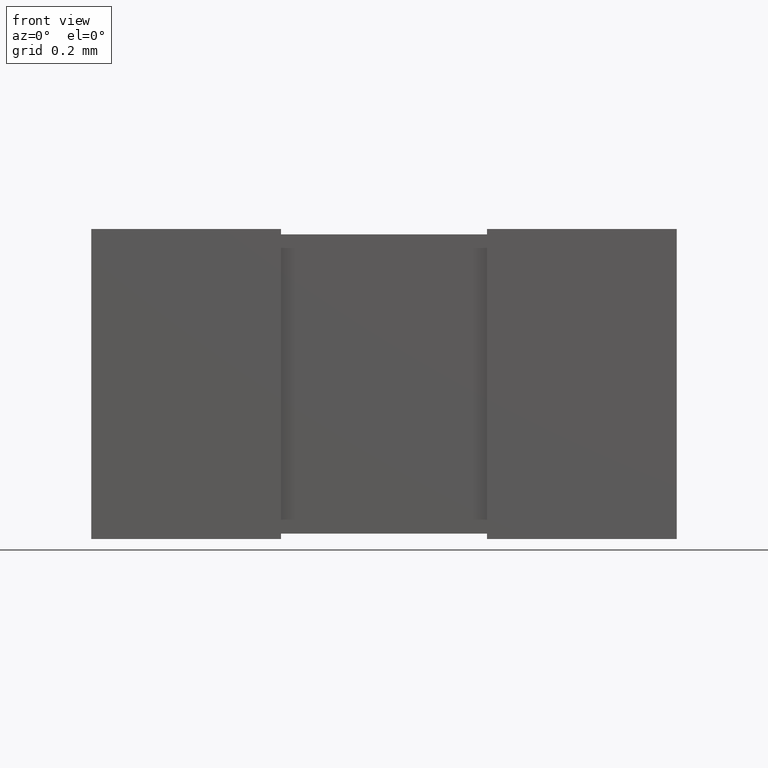
[diagram: clean part render]
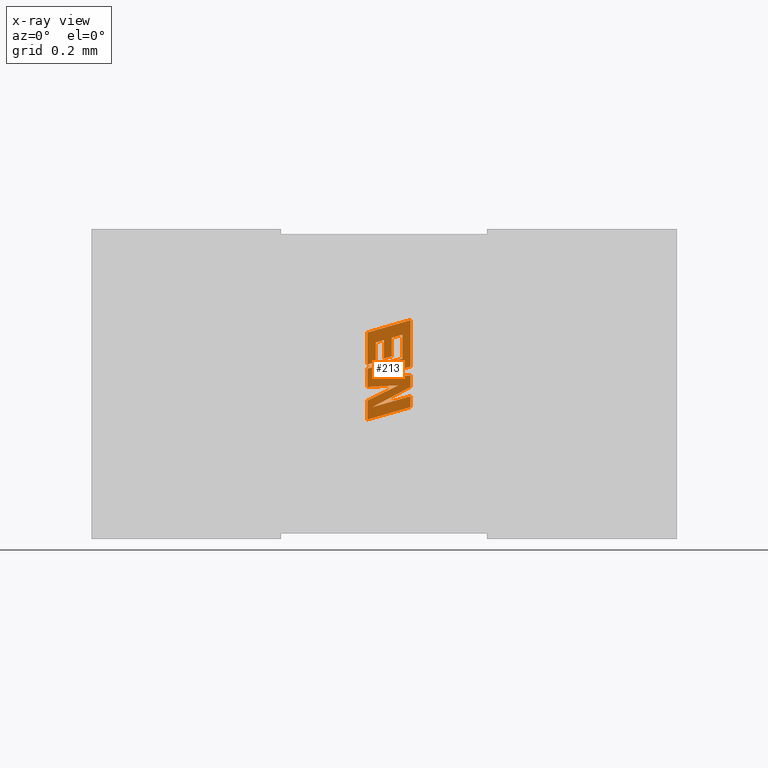
[diagram: x-ray — body ghosted, one internal face saturated and labeled with its STEP entity id]
A machine part, front view, then the same camera in x-ray: the body is ghosted and one INTERNAL B-rep face — a face not visible from any outside direction — is saturated and labeled: STEP entity #213.
In plain terms, the highlighted planar face has unit normal (0, -1, 0).
Its self-contained STEP definition (entity closure, byte-faithful):
#6 = LINE ( 'NONE', #500, #578 ) ;
#37 = EDGE_CURVE ( 'NONE', #2190, #2473, #2180, .T. ) ;
#52 = CARTESIAN_POINT ( 'NONE',  ( 0.8159407111180353400, 0.8844830999999998600, -0.4314949336900854000 ) ) ;
#80 = ORIENTED_EDGE ( 'NONE', *, *, #605, .F. ) ;
#97 = EDGE_CURVE ( 'NONE', #1638, #477, #1908, .T. ) ;
#98 = DIRECTION ( 'NONE',  ( 0.0000000000000000000, 0.0000000000000000000, -1.000000000000000000 ) ) ;
#103 = LINE ( 'NONE', #2197, #849 ) ;
#104 = CARTESIAN_POINT ( 'NONE',  ( 0.9273500000000000100, 0.8844830999999999700, -0.2646913003215108900 ) ) ;
#111 = LINE ( 'NONE', #933, #1276 ) ;
#115 = CARTESIAN_POINT ( 'NONE',  ( 0.8022095100803479100, 0.8844830999999998600, -0.4056333065857030100 ) ) ;
#129 = CARTESIAN_POINT ( 'NONE',  ( 0.8493054711204567300, 0.8844830999999998600, -0.3225977237526284600 ) ) ;
#135 = CARTESIAN_POINT ( 'NONE',  ( 0.9273500000000000100, 0.8844830999999999700, -0.3995060714611904400 ) ) ;
#161 = PLANE ( 'NONE',  #289 ) ;
#167 = CARTESIAN_POINT ( 'NONE',  ( 0.8260293597816164000, 0.8844830999999998600, -0.3293706718635607300 ) ) ;
#185 = DIRECTION ( 'NONE',  ( 0.0000000000000000000, 0.0000000000000000000, 1.000000000000000000 ) ) ;
#187 = CARTESIAN_POINT ( 'NONE',  ( 0.8493054711204567300, 0.8844830999999998600, -0.3225977237526284600 ) ) ;
#197 = ORIENTED_EDGE ( 'NONE', *, *, #2479, .F. ) ;
#209 = CARTESIAN_POINT ( 'NONE',  ( 0.8022095100803479100, 0.8844830999999998600, -0.4589262139308996600 ) ) ;
#211 = CARTESIAN_POINT ( 'NONE',  ( 0.9273500000000000100, 0.8844830999999999700, -0.4586114588088335300 ) ) ;
#213 = ADVANCED_FACE ( 'NONE', ( #2365 ), #161, .T. ) ;
#220 = LINE ( 'NONE', #2135, #727 ) ;
#249 = CARTESIAN_POINT ( 'NONE',  ( 0.8916114839369735400, 0.8844830999999999700, -0.4541136685279321700 ) ) ;
#256 = VERTEX_POINT ( 'NONE', #561 ) ;
#257 = ORIENTED_EDGE ( 'NONE', *, *, #1174, .F. ) ;
#264 = VERTEX_POINT ( 'NONE', #209 ) ;
#279 = CARTESIAN_POINT ( 'NONE',  ( 0.8724396549511576100, 0.8844830999999999700, -0.3159975238687843800 ) ) ;
#289 = AXIS2_PLACEMENT_3D ( 'NONE', #1866, #1880, #1676 ) ;
#290 = VECTOR ( 'NONE', #380, 1000.000000000000200 ) ;
#301 = EDGE_CURVE ( 'NONE', #1501, #2103, #1755, .T. ) ;
#329 = DIRECTION ( 'NONE',  ( -0.9619530280415612400, -1.156730226663547500E-016, -0.2732148821745830600 ) ) ;
#340 = ORIENTED_EDGE ( 'NONE', *, *, #1360, .F. ) ;
#344 = CARTESIAN_POINT ( 'NONE',  ( 0.8022095100803479100, 0.8844830999999998600, -0.3007016957172744000 ) ) ;
#348 = EDGE_CURVE ( 'NONE', #1175, #2498, #1404, .T. ) ;
#350 = LINE ( 'NONE', #211, #2353 ) ;
#380 = DIRECTION ( 'NONE',  ( -0.9601763114327620500, -1.154593758722075100E-016, -0.2793947940878202000 ) ) ;
#387 = CARTESIAN_POINT ( 'NONE',  ( 0.9035419458822905300, 0.8844830999999999700, -0.3765065856870408700 ) ) ;
#398 = DIRECTION ( 'NONE',  ( 0.0000000000000000000, 0.0000000000000000000, 1.000000000000000000 ) ) ;
#412 = CARTESIAN_POINT ( 'NONE',  ( 0.8260293597816164000, 0.8844830999999998600, -0.3293706718635607300 ) ) ;
#415 = VERTEX_POINT ( 'NONE', #832 ) ;
#423 = VECTOR ( 'NONE', #1226, 1000.000000000000000 ) ;
#424 = EDGE_CURVE ( 'NONE', #1139, #264, #1462, .T. ) ;
#469 = VERTEX_POINT ( 'NONE', #1642 ) ;
#477 = VERTEX_POINT ( 'NONE', #689 ) ;
#481 = EDGE_CURVE ( 'NONE', #2154, #415, #6, .T. ) ;
#488 = DIRECTION ( 'NONE',  ( 0.0000000000000000000, 0.0000000000000000000, 1.000000000000000000 ) ) ;
#492 = CARTESIAN_POINT ( 'NONE',  ( 0.8724396549511576100, 0.8844830999999999700, -0.3697016753494336000 ) ) ;
#499 = EDGE_CURVE ( 'NONE', #256, #469, #1008, .T. ) ;
#500 = CARTESIAN_POINT ( 'NONE',  ( 0.9273500000000000100, 0.8844830999999999700, -0.4855609432410906700 ) ) ;
#528 = ORIENTED_EDGE ( 'NONE', *, *, #2467, .F. ) ;
#553 = CARTESIAN_POINT ( 'NONE',  ( 0.8260293597816164000, 0.8844830999999998600, -0.3863859578644302000 ) ) ;
#561 = CARTESIAN_POINT ( 'NONE',  ( 0.8022095100803479100, 0.8844830999999998600, -0.5533398897002442800 ) ) ;
#571 = LINE ( 'NONE', #1709, #1684 ) ;
#578 = VECTOR ( 'NONE', #2034, 1000.000000000000000 ) ;
#605 = EDGE_CURVE ( 'NONE', #771, #1638, #1580, .T. ) ;
#636 = EDGE_CURVE ( 'NONE', #1247, #2154, #1516, .T. ) ;
#653 = CARTESIAN_POINT ( 'NONE',  ( 0.8916114839369735400, 0.8844830999999999700, -0.4541136685279321700 ) ) ;
#671 = LINE ( 'NONE', #1371, #2115 ) ;
#689 = CARTESIAN_POINT ( 'NONE',  ( 0.8022095100803479100, 0.8844830999999998600, -0.3931512959213183100 ) ) ;
#712 = ORIENTED_EDGE ( 'NONE', *, *, #1632, .F. ) ;
#727 = VECTOR ( 'NONE', #1231, 1000.000000000000100 ) ;
#747 = VERTEX_POINT ( 'NONE', #52 ) ;
#750 = DIRECTION ( 'NONE',  ( -0.8843386665636737700, -1.063400432663684600E-016, -0.4668459304956865100 ) ) ;
#771 = VERTEX_POINT ( 'NONE', #412 ) ;
#775 = DIRECTION ( 'NONE',  ( 0.0000000000000000000, 0.0000000000000000000, -1.000000000000000000 ) ) ;
#778 = CARTESIAN_POINT ( 'NONE',  ( 0.9273500000000000100, 0.8844830999999999700, -0.4252501233308056400 ) ) ;
#789 = VECTOR ( 'NONE', #775, 1000.000000000000000 ) ;
#799 = ORIENTED_EDGE ( 'NONE', *, *, #424, .F. ) ;
#832 = CARTESIAN_POINT ( 'NONE',  ( 0.9273500000000000100, 0.8844830999999999700, -0.5173610761293130400 ) ) ;
#843 = CARTESIAN_POINT ( 'NONE',  ( 0.9035419458822904200, 0.8844830999999999700, -0.3071356159191308600 ) ) ;
#846 = EDGE_CURVE ( 'NONE', #747, #1501, #882, .T. ) ;
#849 = VECTOR ( 'NONE', #488, 1000.000000000000000 ) ;
#868 = ORIENTED_EDGE ( 'NONE', *, *, #1614, .F. ) ;
#873 = CARTESIAN_POINT ( 'NONE',  ( 0.8154042023072742800, 0.8844830999999998600, -0.5177080945943269800 ) ) ;
#882 = LINE ( 'NONE', #1814, #1897 ) ;
#894 = VECTOR ( 'NONE', #98, 1000.000000000000000 ) ;
#900 = ORIENTED_EDGE ( 'NONE', *, *, #1260, .F. ) ;
#919 = LINE ( 'NONE', #1919, #1494 ) ;
#920 = ORIENTED_EDGE ( 'NONE', *, *, #301, .F. ) ;
#921 = ORIENTED_EDGE ( 'NONE', *, *, #481, .F. ) ;
#933 = CARTESIAN_POINT ( 'NONE',  ( 0.8022095100803479100, 0.8844830999999998600, -0.4984541219365795100 ) ) ;
#941 = CARTESIAN_POINT ( 'NONE',  ( 0.8022095100803479100, 0.8844830999999998600, -0.5533398897002442800 ) ) ;
#945 = VECTOR ( 'NONE', #2086, 1000.000000000000000 ) ;
#958 = ORIENTED_EDGE ( 'NONE', *, *, #2026, .F. ) ;
#961 = DIRECTION ( 'NONE',  ( -0.9617234872620599200, -1.156454208240442300E-016, -0.2740217765954055000 ) ) ;
#964 = DIRECTION ( 'NONE',  ( 0.9611542233438126200, 1.155769679202130900E-016, 0.2760118818970521100 ) ) ;
#979 = ORIENTED_EDGE ( 'NONE', *, *, #636, .F. ) ;
#988 = ORIENTED_EDGE ( 'NONE', *, *, #1186, .F. ) ;
#1008 = LINE ( 'NONE', #941, #945 ) ;
#1052 = ORIENTED_EDGE ( 'NONE', *, *, #37, .F. ) ;
#1114 = CARTESIAN_POINT ( 'NONE',  ( 0.9273500000000000100, 0.8844830999999999700, -0.4855609432410906700 ) ) ;
#1139 = VERTEX_POINT ( 'NONE', #249 ) ;
#1174 = EDGE_CURVE ( 'NONE', #2498, #1943, #1628, .T. ) ;
#1175 = VERTEX_POINT ( 'NONE', #279 ) ;
#1186 = EDGE_CURVE ( 'NONE', #1943, #1223, #103, .T. ) ;
#1223 = VERTEX_POINT ( 'NONE', #129 ) ;
#1226 = DIRECTION ( 'NONE',  ( -0.9615454294334472300, -1.156240097086938200E-016, -0.2746459304916925600 ) ) ;
#1231 = DIRECTION ( 'NONE',  ( -0.9611638845408402300, -1.155781296607868900E-016, -0.2759782365592664000 ) ) ;
#1247 = VERTEX_POINT ( 'NONE', #873 ) ;
#1260 = EDGE_CURVE ( 'NONE', #1722, #2303, #2286, .T. ) ;
#1275 = VECTOR ( 'NONE', #2176, 1000.000000000000000 ) ;
#1276 = VECTOR ( 'NONE', #2254, 1000.000000000000100 ) ;
#1279 = VECTOR ( 'NONE', #2081, 1000.000000000000100 ) ;
#1338 = CARTESIAN_POINT ( 'NONE',  ( 0.8022095100803479100, 0.8844830999999998600, -0.4589262139308996600 ) ) ;
#1346 = EDGE_LOOP ( 'NONE', ( #2253, #2381, #921, #979, #868, #920, #1949, #197, #1672, #1052, #528, #2399, #80, #712, #988, #257, #2189, #958, #340, #900, #1408, #799, #1524 ) ) ;
#1360 = EDGE_CURVE ( 'NONE', #2303, #1758, #1393, .T. ) ;
#1369 = VECTOR ( 'NONE', #2175, 1000.000000000000000 ) ;
#1371 = CARTESIAN_POINT ( 'NONE',  ( 0.8022095100803479100, 0.8844830999999998600, -0.3931512959213183100 ) ) ;
#1375 = CARTESIAN_POINT ( 'NONE',  ( 0.9035419458822905300, 0.8844830999999999700, -0.3765065856870408700 ) ) ;
#1393 = LINE ( 'NONE', #1375, #1541 ) ;
#1402 = LINE ( 'NONE', #1338, #2364 ) ;
#1404 = LINE ( 'NONE', #1616, #894 ) ;
#1408 = ORIENTED_EDGE ( 'NONE', *, *, #2274, .F. ) ;
#1462 = LINE ( 'NONE', #653, #1275 ) ;
#1480 = LINE ( 'NONE', #187, #290 ) ;
#1494 = VECTOR ( 'NONE', #961, 1000.000000000000100 ) ;
#1501 = VERTEX_POINT ( 'NONE', #1927 ) ;
#1510 = VECTOR ( 'NONE', #2030, 1000.000000000000100 ) ;
#1516 = LINE ( 'NONE', #1531, #2393 ) ;
#1524 = ORIENTED_EDGE ( 'NONE', *, *, #2091, .F. ) ;
#1531 = CARTESIAN_POINT ( 'NONE',  ( 0.8154042023072742800, 0.8844830999999998600, -0.5177080945943269800 ) ) ;
#1540 = EDGE_CURVE ( 'NONE', #2473, #1879, #571, .T. ) ;
#1541 = VECTOR ( 'NONE', #398, 1000.000000000000000 ) ;
#1580 = LINE ( 'NONE', #167, #789 ) ;
#1614 = EDGE_CURVE ( 'NONE', #2103, #1247, #350, .T. ) ;
#1616 = CARTESIAN_POINT ( 'NONE',  ( 0.8724396549511576100, 0.8844830999999999700, -0.3159975238687843800 ) ) ;
#1620 = CARTESIAN_POINT ( 'NONE',  ( 0.9273500000000000100, 0.8844830999999999700, -0.5173610761293130400 ) ) ;
#1628 = LINE ( 'NONE', #2014, #423 ) ;
#1632 = EDGE_CURVE ( 'NONE', #1223, #771, #1480, .T. ) ;
#1637 = CARTESIAN_POINT ( 'NONE',  ( 0.8493054711204567300, 0.8844830999999998600, -0.3763094852873295500 ) ) ;
#1638 = VERTEX_POINT ( 'NONE', #2315 ) ;
#1642 = CARTESIAN_POINT ( 'NONE',  ( 0.8022095100803479100, 0.8844830999999998600, -0.4984541219365795100 ) ) ;
#1653 = VECTOR ( 'NONE', #1859, 1000.000000000000100 ) ;
#1672 = ORIENTED_EDGE ( 'NONE', *, *, #1540, .F. ) ;
#1676 = DIRECTION ( 'NONE',  ( 0.0000000000000000000, 0.0000000000000000000, -1.000000000000000000 ) ) ;
#1684 = VECTOR ( 'NONE', #2284, 1000.000000000000000 ) ;
#1709 = CARTESIAN_POINT ( 'NONE',  ( 0.9273500000000001200, 0.8844830999999999700, -0.3772314432361868500 ) ) ;
#1722 = VERTEX_POINT ( 'NONE', #2352 ) ;
#1755 = LINE ( 'NONE', #778, #1369 ) ;
#1758 = VERTEX_POINT ( 'NONE', #843 ) ;
#1814 = CARTESIAN_POINT ( 'NONE',  ( 0.8159407111180353400, 0.8844830999999998600, -0.4314949336900854000 ) ) ;
#1833 = LINE ( 'NONE', #1620, #1510 ) ;
#1859 = DIRECTION ( 'NONE',  ( 0.9610853065513876900, 1.155686808069551400E-016, 0.2762517575166267300 ) ) ;
#1866 = CARTESIAN_POINT ( 'NONE',  ( 0.2017464443607649100, 0.8844830999999996300, -0.01832847911171577400 ) ) ;
#1879 = VERTEX_POINT ( 'NONE', #135 ) ;
#1880 = DIRECTION ( 'NONE',  ( 1.202480987058726500E-016, -1.000000000000000000, 0.0000000000000000000 ) ) ;
#1897 = VECTOR ( 'NONE', #2383, 1000.000000000000100 ) ;
#1904 = EDGE_CURVE ( 'NONE', #415, #256, #1833, .T. ) ;
#1908 = LINE ( 'NONE', #553, #2367 ) ;
#1919 = CARTESIAN_POINT ( 'NONE',  ( 0.9035419458822904200, 0.8844830999999999700, -0.3071356159191308600 ) ) ;
#1927 = CARTESIAN_POINT ( 'NONE',  ( 0.9273500000000000100, 0.8844830999999999700, -0.4252501233308056400 ) ) ;
#1943 = VERTEX_POINT ( 'NONE', #1637 ) ;
#1947 = DIRECTION ( 'NONE',  ( 0.0000000000000000000, 0.0000000000000000000, 1.000000000000000000 ) ) ;
#1949 = ORIENTED_EDGE ( 'NONE', *, *, #846, .F. ) ;
#2014 = CARTESIAN_POINT ( 'NONE',  ( 0.8724396549511576100, 0.8844830999999999700, -0.3697016753494336000 ) ) ;
#2026 = EDGE_CURVE ( 'NONE', #1758, #1175, #919, .T. ) ;
#2030 = DIRECTION ( 'NONE',  ( -0.9610674221107117200, -1.155665302369674400E-016, -0.2763139702538959800 ) ) ;
#2034 = DIRECTION ( 'NONE',  ( 0.0000000000000000000, 0.0000000000000000000, -1.000000000000000000 ) ) ;
#2081 = DIRECTION ( 'NONE',  ( 0.9610029908221285900, 1.155587824970181500E-016, 0.2765379750249931700 ) ) ;
#2086 = DIRECTION ( 'NONE',  ( 0.0000000000000000000, 0.0000000000000000000, 1.000000000000000000 ) ) ;
#2091 = EDGE_CURVE ( 'NONE', #469, #1139, #111, .T. ) ;
#2103 = VERTEX_POINT ( 'NONE', #2270 ) ;
#2115 = VECTOR ( 'NONE', #1947, 1000.000000000000000 ) ;
#2135 = CARTESIAN_POINT ( 'NONE',  ( 0.9273500000000000100, 0.8844830999999999700, -0.3995060714611904400 ) ) ;
#2154 = VERTEX_POINT ( 'NONE', #1114 ) ;
#2175 = DIRECTION ( 'NONE',  ( 0.0000000000000000000, 0.0000000000000000000, -1.000000000000000000 ) ) ;
#2176 = DIRECTION ( 'NONE',  ( -0.9985542843760937300, -1.200742541508285300E-016, -0.05375259206910184400 ) ) ;
#2180 = LINE ( 'NONE', #2464, #1279 ) ;
#2189 = ORIENTED_EDGE ( 'NONE', *, *, #348, .F. ) ;
#2190 = VERTEX_POINT ( 'NONE', #344 ) ;
#2197 = CARTESIAN_POINT ( 'NONE',  ( 0.8493054711204567300, 0.8844830999999998600, -0.3763094852873295500 ) ) ;
#2253 = ORIENTED_EDGE ( 'NONE', *, *, #499, .F. ) ;
#2254 = DIRECTION ( 'NONE',  ( 0.8958676361826947200, 1.077263799430935200E-016, 0.4443210308329226300 ) ) ;
#2270 = CARTESIAN_POINT ( 'NONE',  ( 0.9273500000000000100, 0.8844830999999999700, -0.4586114588088335300 ) ) ;
#2274 = EDGE_CURVE ( 'NONE', #264, #1722, #1402, .T. ) ;
#2284 = DIRECTION ( 'NONE',  ( 0.0000000000000000000, 0.0000000000000000000, -1.000000000000000000 ) ) ;
#2286 = LINE ( 'NONE', #115, #1653 ) ;
#2303 = VERTEX_POINT ( 'NONE', #387 ) ;
#2315 = CARTESIAN_POINT ( 'NONE',  ( 0.8260293597816164000, 0.8844830999999998600, -0.3863859578644302000 ) ) ;
#2352 = CARTESIAN_POINT ( 'NONE',  ( 0.8022095100803479100, 0.8844830999999998600, -0.4056333065857030100 ) ) ;
#2353 = VECTOR ( 'NONE', #750, 1000.000000000000100 ) ;
#2364 = VECTOR ( 'NONE', #185, 1000.000000000000000 ) ;
#2365 = FACE_OUTER_BOUND ( 'NONE', #1346, .T. ) ;
#2367 = VECTOR ( 'NONE', #329, 1000.000000000000100 ) ;
#2381 = ORIENTED_EDGE ( 'NONE', *, *, #1904, .F. ) ;
#2383 = DIRECTION ( 'NONE',  ( 0.9984327301130131400, 1.200596374818034800E-016, 0.05596501978088726200 ) ) ;
#2393 = VECTOR ( 'NONE', #964, 1000.000000000000100 ) ;
#2399 = ORIENTED_EDGE ( 'NONE', *, *, #97, .F. ) ;
#2464 = CARTESIAN_POINT ( 'NONE',  ( 0.8022095100803479100, 0.8844830999999998600, -0.3007016957172744000 ) ) ;
#2467 = EDGE_CURVE ( 'NONE', #477, #2190, #671, .T. ) ;
#2473 = VERTEX_POINT ( 'NONE', #104 ) ;
#2479 = EDGE_CURVE ( 'NONE', #1879, #747, #220, .T. ) ;
#2498 = VERTEX_POINT ( 'NONE', #492 ) ;